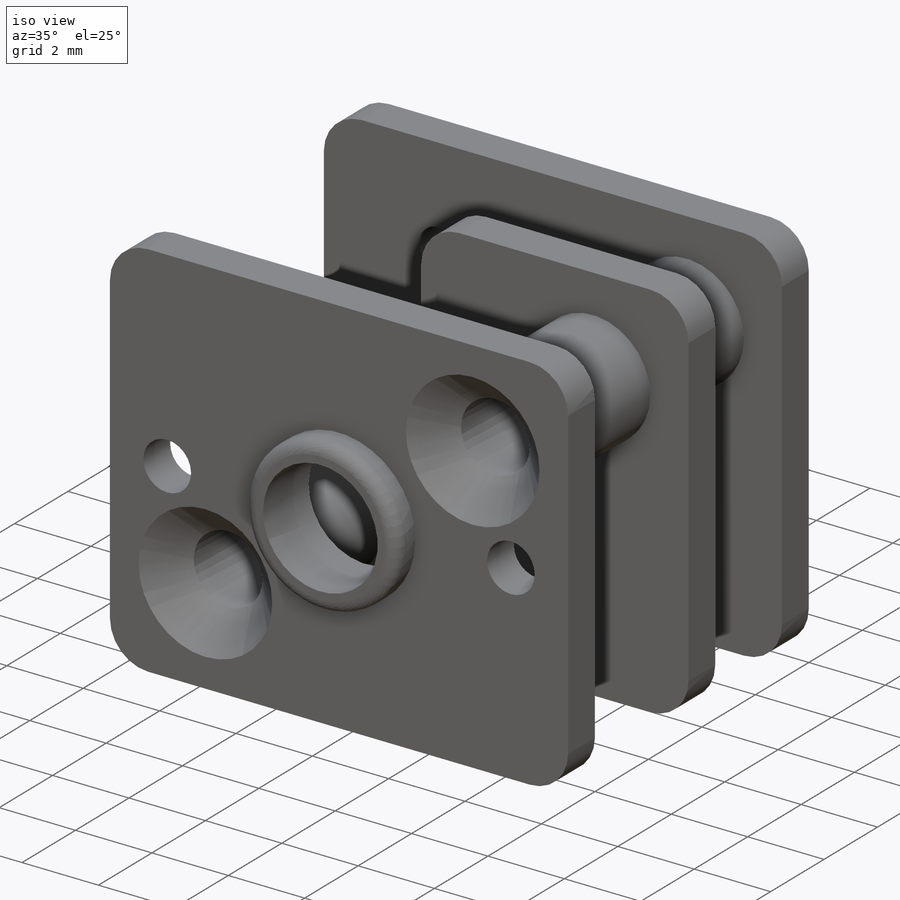
[diagram: iso view]
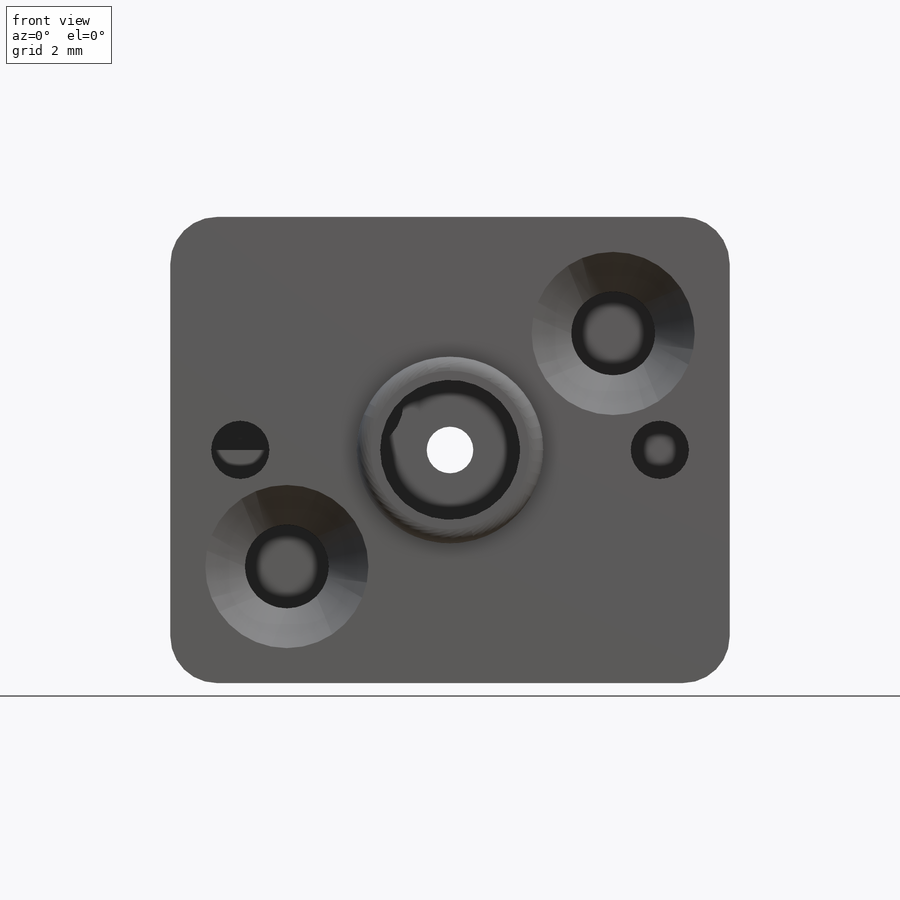
[diagram: front view]
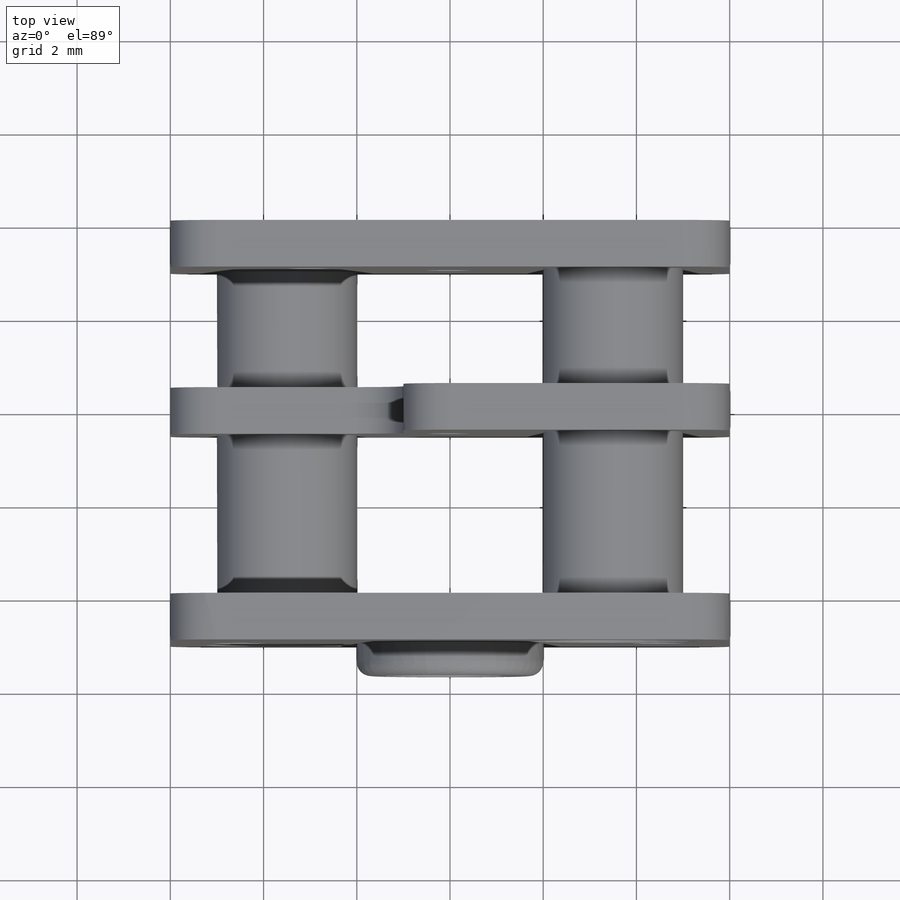
[diagram: top view]
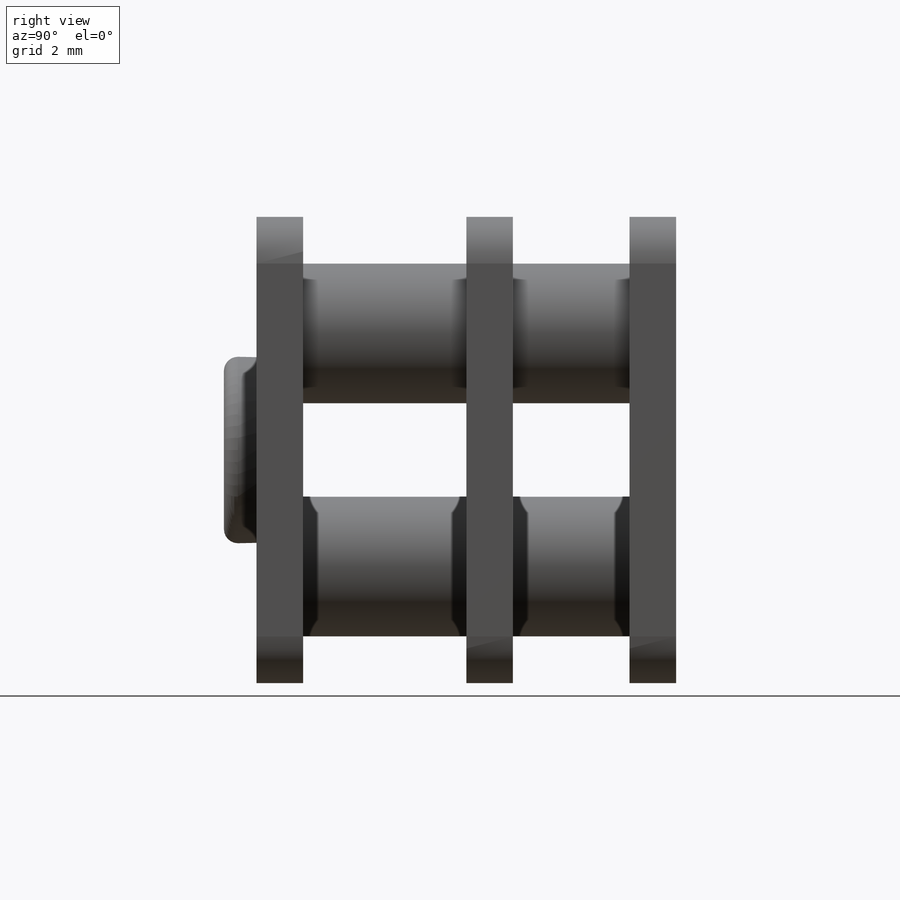
[diagram: right view]
SOLIDWORKS PART (.sldprt)
format: sldprt  version: not decoded by parser v0  size: 468,992 bytes
history: native  units: mm
features: sketch x10, extrude x6, plane x3, fillet x2, hole x2, thread x2, material x1 (+8 scaffold rows collapsed)
feature tree (34):
  scaffold x8  (default folders/planes/origin — collapsed)
  material  "铜"
  plane  "前视基准面"
  plane  "上视基准面"
  plane  "右视基准面"
  sketch  "草图1"  dims[D3=~1.569041mm D1=12.0mm D2=10.0mm]
  extrude  "凸台-拉伸1"  Depth=1mm
  sketch  "草图4"  dims[c1.D1=~1.736561mm c1.D3=2.0mm c2.D1=2.5mm c2.D2=2.5mm]
  extrude  "凸台-拉伸2"  Depth=3.5mm
  sketch  "草图5"  dims[c1.D3=~0.379454mm c1.D1=5.0mm c1.D2=5.0mm c2.D3=2.0mm c2.D4=3.0mm]
  extrude  "凸台-拉伸3"  Depth=1mm
  sketch  "草图6"  dims[D1=0.0mm D2=0.0mm D3=0.0mm D4=0.0mm]
  extrude  "凸台-拉伸4"  Depth=2.5mm
  sketch  "草图7"  dims[D1=3.0mm D2=2.5mm]
  extrude  "凸台-拉伸5"  Depth=1mm
  fillet  "圆角1"  Radius=1mm
  hole  "打孔尺寸根据开槽半沉头木螺钉的类型1"  [1 undecoded]
  sketch  "草图9"  dims[D1=0.0mm D2=0.0mm D3=0.0mm D4=0.0mm]
  sketch  "草图8"  dims[hole-wizard template sketch: 54 standard entries collapsed; hole parameters kept: c17.通孔孔直径=1.8mm c17.通孔孔深度=1.0mm c17.近端锥形沉头孔直径=3.5mm c17.D4=~3.666174mm c17.近端锥形沉头孔角度=90.0deg]
  hole  "M1.6 螺纹孔1"  [1 undecoded]
  sketch  "草图11"  dims[D1=4.5mm D2=4.5mm]
  thread  "孔螺蚊线1"  Diameter=1.6mm  [1 undecoded]
  thread  "孔螺蚊线2"  Diameter=1.6mm  [1 undecoded]
  sketch  "草图10"  dims[hole-wizard template sketch: 59 standard entries collapsed; hole parameters kept: c18.通孔螺纹孔钻头直径=1.25mm c18.通孔螺纹孔钻头深度=1.0mm]
  sketch  "草图12"  dims[D1=~2.09144mm]
  extrude  "凸台-拉伸6"  Depth=0.7mm
  fillet  "圆角2"  Radius=0.3mm
decode coverage: 20 of 22 modeling features carry decoded parameters
note: ~ marks probable driven/reference dimensions
note: 4 parameter values undecoded
note: suppression state not decoded; provenance and decode notes live in map.json
